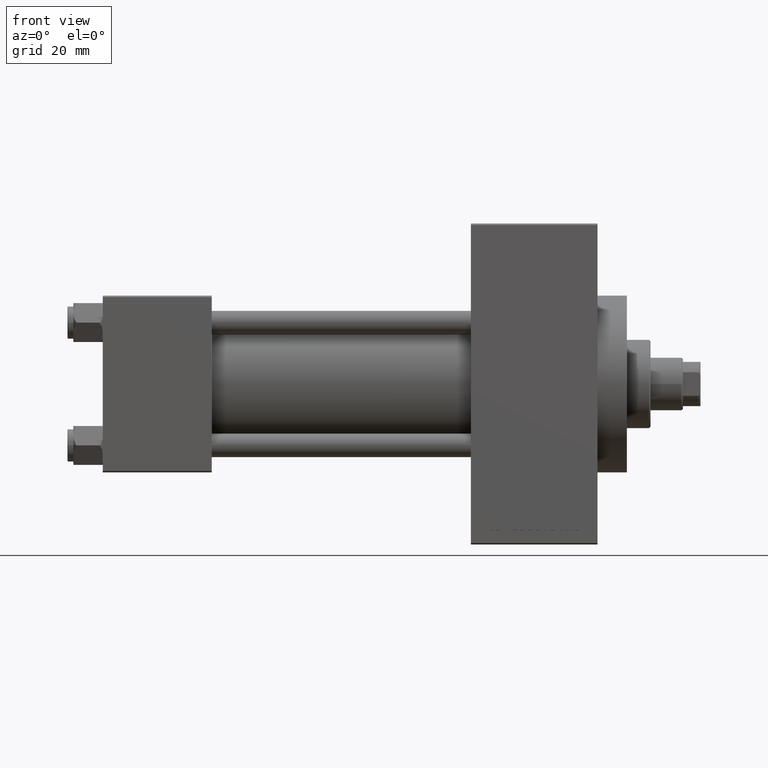
[diagram: clean part render]
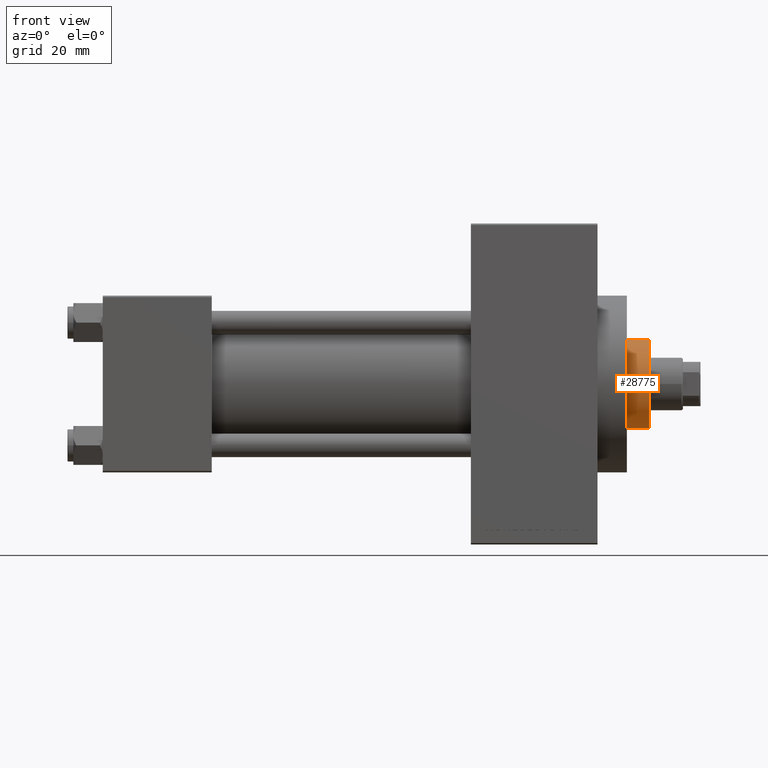
[diagram: same view with one face highlighted and labeled with its STEP entity id]
A machine part, front view. The second image highlights one B-rep face of the part: STEP entity #28775.
In plain terms, the highlighted cylindrical surface (partial cylindrical patch) has radius 15 mm, axis along (-1, 0, 0).
Its self-contained STEP definition (entity closure, byte-faithful):
#1710 = VECTOR ( 'NONE', #16624, 1000.000000000000000 ) ;
#2497 = EDGE_LOOP ( 'NONE', ( #45257, #33852, #29061, #25950 ) ) ;
#2986 = DIRECTION ( 'NONE',  ( 1.000000000000000000, 0.000000000000000000, 0.000000000000000000 ) ) ;
#3598 = VERTEX_POINT ( 'NONE', #39057 ) ;
#4502 = CARTESIAN_POINT ( 'NONE',  ( 0.000000000000000000, 0.000000000000000000, 50.75999999999998380 ) ) ;
#6442 = CARTESIAN_POINT ( 'NONE',  ( -15.00000000000000000, 0.000000000000000000, 50.75999999999998380 ) ) ;
#6569 = CARTESIAN_POINT ( 'NONE',  ( 0.000000000000000000, 0.000000000000000000, 43.25999999999999801 ) ) ;
#7345 = CYLINDRICAL_SURFACE ( 'NONE', #46219, 15.00000000000000000 ) ;
#9692 = EDGE_CURVE ( 'NONE', #40033, #22156, #26802, .T. ) ;
#11750 = EDGE_CURVE ( 'NONE', #22156, #3598, #19667, .T. ) ;
#12402 = EDGE_CURVE ( 'NONE', #40033, #36224, #39044, .T. ) ;
#14781 = DIRECTION ( 'NONE',  ( 0.000000000000000000, 0.000000000000000000, -1.000000000000000000 ) ) ;
#14978 = CARTESIAN_POINT ( 'NONE',  ( -15.00000000000000000, 0.000000000000000000, 43.25999999999999801 ) ) ;
#16624 = DIRECTION ( 'NONE',  ( -0.000000000000000000, -0.000000000000000000, -1.000000000000000000 ) ) ;
#18108 = FACE_OUTER_BOUND ( 'NONE', #2497, .T. ) ;
#19667 = LINE ( 'NONE', #27320, #39845 ) ;
#21152 = DIRECTION ( 'NONE',  ( 0.000000000000000000, 0.000000000000000000, 1.000000000000000000 ) ) ;
#21929 = DIRECTION ( 'NONE',  ( -0.000000000000000000, -0.000000000000000000, -1.000000000000000000 ) ) ;
#22156 = VERTEX_POINT ( 'NONE', #35745 ) ;
#24061 = EDGE_CURVE ( 'NONE', #3598, #36224, #24082, .T. ) ;
#24082 = CIRCLE ( 'NONE', #27904, 15.00000000000000000 ) ;
#25950 = ORIENTED_EDGE ( 'NONE', *, *, #12402, .F. ) ;
#26802 = CIRCLE ( 'NONE', #30618, 15.00000000000000000 ) ;
#27320 = CARTESIAN_POINT ( 'NONE',  ( 15.00000000000000000, 1.836970198721029589E-15, 51.25999999999999801 ) ) ;
#27904 = AXIS2_PLACEMENT_3D ( 'NONE', #6569, #21152, #2986 ) ;
#28775 = ADVANCED_FACE ( 'NONE', ( #18108 ), #7345, .T. ) ;
#29061 = ORIENTED_EDGE ( 'NONE', *, *, #24061, .T. ) ;
#29340 = DIRECTION ( 'NONE',  ( -1.000000000000000000, 0.000000000000000000, 0.000000000000000000 ) ) ;
#30618 = AXIS2_PLACEMENT_3D ( 'NONE', #4502, #14781, #40819 ) ;
#33852 = ORIENTED_EDGE ( 'NONE', *, *, #11750, .T. ) ;
#35015 = CARTESIAN_POINT ( 'NONE',  ( -15.00000000000000000, 0.000000000000000000, 51.25999999999999801 ) ) ;
#35745 = CARTESIAN_POINT ( 'NONE',  ( 15.00000000000000000, 1.836970198721029589E-15, 50.75999999999998380 ) ) ;
#36224 = VERTEX_POINT ( 'NONE', #14978 ) ;
#39044 = LINE ( 'NONE', #35015, #1710 ) ;
#39057 = CARTESIAN_POINT ( 'NONE',  ( 15.00000000000000000, 1.836970198721029589E-15, 43.25999999999999801 ) ) ;
#39845 = VECTOR ( 'NONE', #41881, 1000.000000000000000 ) ;
#40033 = VERTEX_POINT ( 'NONE', #6442 ) ;
#40819 = DIRECTION ( 'NONE',  ( 1.000000000000000000, 0.000000000000000000, 0.000000000000000000 ) ) ;
#41881 = DIRECTION ( 'NONE',  ( -0.000000000000000000, -0.000000000000000000, -1.000000000000000000 ) ) ;
#45257 = ORIENTED_EDGE ( 'NONE', *, *, #9692, .T. ) ;
#46219 = AXIS2_PLACEMENT_3D ( 'NONE', #47002, #21929, #29340 ) ;
#47002 = CARTESIAN_POINT ( 'NONE',  ( 0.000000000000000000, 0.000000000000000000, 51.25999999999999801 ) ) ;